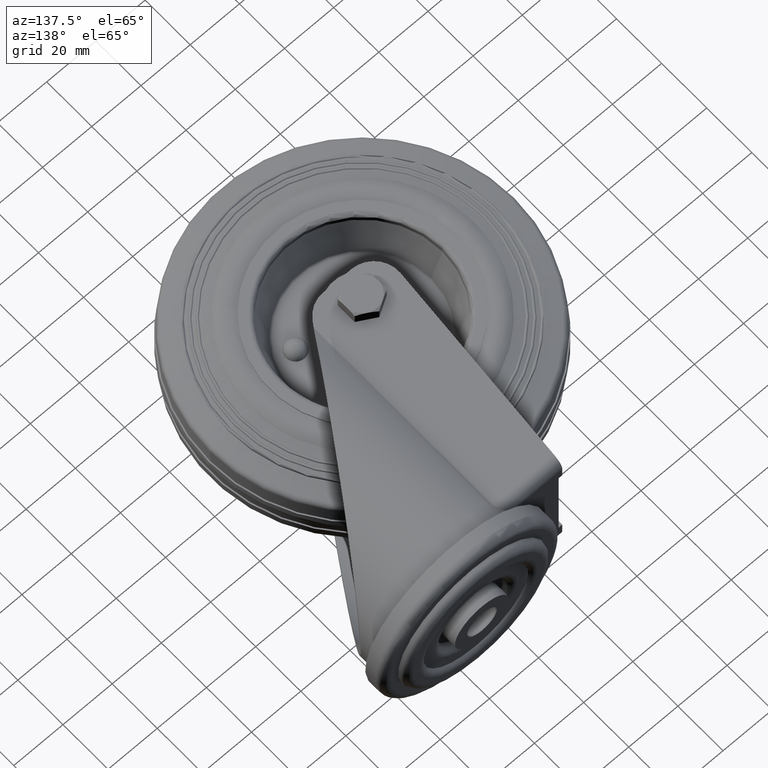
[diagram: clean part render]
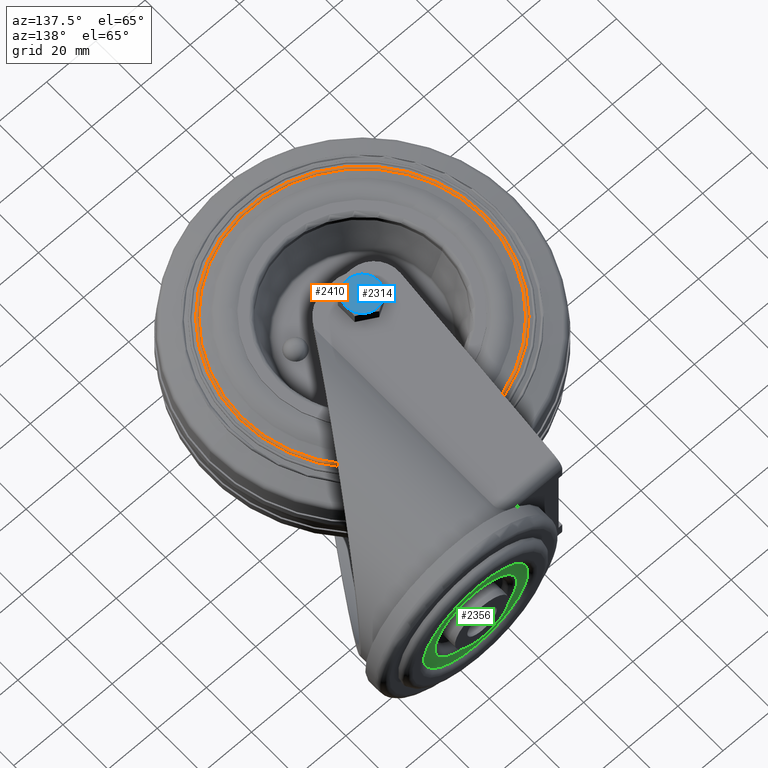
[diagram: same view with three faces highlighted in distinct colors, each labeled with its STEP entity id]
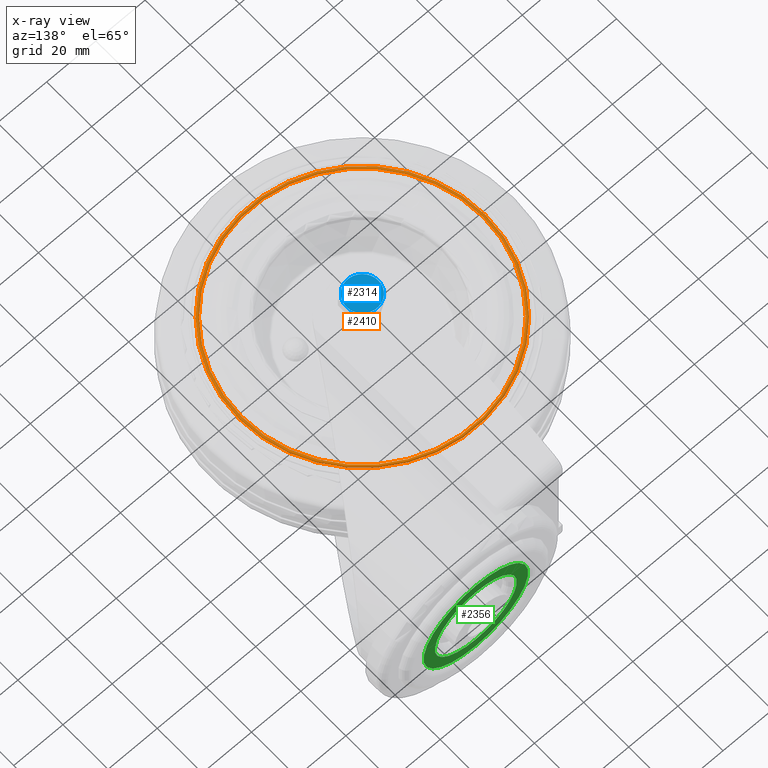
[diagram: x-ray of the same camera — body ghosted, the three highlighted faces saturated]
A machine part, auxiliary view with three faces highlighted in distinct colors.
The next image is the same camera in x-ray (body ghosted, the three faces saturated) — at least one of them is partly hidden behind the body in this view.
Their STEP definitions:

[orange] entity #2410 — the highlighted toroidal blend (fillet) surface has major radius 49.4615 mm and minor (blend) radius 0.5 mm.
#46=TOROIDAL_SURFACE('',#2857,49.4615108371233,0.500000000000003);
#403=CIRCLE('',#2855,48.9887515493236);
#404=CIRCLE('',#2856,48.9887515493236);
#405=CIRCLE('',#2858,0.500000000000003);
#406=CIRCLE('',#2859,49.9342701249229);
#407=CIRCLE('',#2860,49.9342701249229);
#585=FACE_OUTER_BOUND('',#769,.T.);
#769=EDGE_LOOP('',(#2065,#2066,#2067,#2068,#2069,#2070));
#1193=VERTEX_POINT('',#4407);
#1194=VERTEX_POINT('',#4408);
#1195=VERTEX_POINT('',#4413);
#1196=VERTEX_POINT('',#4415);
#1492=EDGE_CURVE('',#1193,#1194,#403,.T.);
#1493=EDGE_CURVE('',#1194,#1193,#404,.T.);
#1495=EDGE_CURVE('',#1194,#1195,#405,.T.);
#1496=EDGE_CURVE('',#1195,#1196,#406,.T.);
#1497=EDGE_CURVE('',#1196,#1195,#407,.T.);
#2065=ORIENTED_EDGE('',*,*,#1492,.F.);
#2066=ORIENTED_EDGE('',*,*,#1493,.F.);
#2067=ORIENTED_EDGE('',*,*,#1495,.T.);
#2068=ORIENTED_EDGE('',*,*,#1496,.T.);
#2069=ORIENTED_EDGE('',*,*,#1497,.T.);
#2070=ORIENTED_EDGE('',*,*,#1495,.F.);
#2410=ADVANCED_FACE('',(#585),#46,.T.);
#2855=AXIS2_PLACEMENT_3D('',#4409,#3524,#3525);
#2856=AXIS2_PLACEMENT_3D('',#4410,#3526,#3527);
#2857=AXIS2_PLACEMENT_3D('',#4412,#3529,#3530);
#2858=AXIS2_PLACEMENT_3D('',#4414,#3531,#3532);
#2859=AXIS2_PLACEMENT_3D('',#4416,#3533,#3534);
#2860=AXIS2_PLACEMENT_3D('',#4417,#3535,#3536);
#3524=DIRECTION('center_axis',(1.,0.,0.));
#3525=DIRECTION('ref_axis',(0.,0.,-1.));
#3526=DIRECTION('center_axis',(1.,0.,0.));
#3527=DIRECTION('ref_axis',(0.,0.,-1.));
#3529=DIRECTION('center_axis',(1.,0.,0.));
#3530=DIRECTION('ref_axis',(0.,0.,-1.));
#3531=DIRECTION('center_axis',(0.,-1.,-1.22464679914735E-16));
#3532=DIRECTION('ref_axis',(0.,-1.22464679914735E-16,1.));
#3533=DIRECTION('center_axis',(1.,0.,0.));
#3534=DIRECTION('ref_axis',(0.,0.,-1.));
#3535=DIRECTION('center_axis',(1.,0.,0.));
#3536=DIRECTION('ref_axis',(0.,0.,-1.));
#4407=CARTESIAN_POINT('',(36.9022959315851,0.,-48.9887515493236));
#4408=CARTESIAN_POINT('',(36.9022959315851,-5.99939177791041E-15,48.9887515493236));
#4409=CARTESIAN_POINT('Origin',(36.9022959315851,0.,0.));
#4410=CARTESIAN_POINT('Origin',(36.9022959315851,0.,0.));
#4412=CARTESIAN_POINT('Origin',(36.7395118543565,0.,0.));
#4413=CARTESIAN_POINT('',(36.5767277771279,-6.11518440762461E-15,49.9342701249229));
#4414=CARTESIAN_POINT('Origin',(36.7395118543565,-6.05728809276752E-15,
49.4615108371233));
#4415=CARTESIAN_POINT('',(36.5767277771279,0.,-49.9342701249229));
#4416=CARTESIAN_POINT('Origin',(36.5767277771279,0.,0.));
#4417=CARTESIAN_POINT('Origin',(36.5767277771279,0.,0.));

[blue] entity #2314 — the highlighted planar face has unit normal (0, 0, -1).
#305=CIRCLE('',#2645,6.5);
#306=CIRCLE('',#2647,6.5);
#307=CIRCLE('',#2649,6.5);
#308=CIRCLE('',#2651,6.5);
#309=CIRCLE('',#2653,6.5);
#310=CIRCLE('',#2655,6.5);
#489=FACE_OUTER_BOUND('',#646,.T.);
#646=EDGE_LOOP('',(#1648,#1649,#1650,#1651,#1652,#1653));
#1051=VERTEX_POINT('',#3811);
#1054=VERTEX_POINT('',#3823);
#1056=VERTEX_POINT('',#3833);
#1058=VERTEX_POINT('',#3843);
#1060=VERTEX_POINT('',#3853);
#1061=VERTEX_POINT('',#3862);
#1282=EDGE_CURVE('',#1054,#1051,#305,.T.);
#1283=EDGE_CURVE('',#1051,#1061,#306,.T.);
#1284=EDGE_CURVE('',#1060,#1058,#307,.T.);
#1285=EDGE_CURVE('',#1058,#1056,#308,.T.);
#1286=EDGE_CURVE('',#1056,#1054,#309,.T.);
#1287=EDGE_CURVE('',#1061,#1060,#310,.T.);
#1648=ORIENTED_EDGE('',*,*,#1286,.F.);
#1649=ORIENTED_EDGE('',*,*,#1285,.F.);
#1650=ORIENTED_EDGE('',*,*,#1284,.F.);
#1651=ORIENTED_EDGE('',*,*,#1287,.F.);
#1652=ORIENTED_EDGE('',*,*,#1283,.F.);
#1653=ORIENTED_EDGE('',*,*,#1282,.F.);
#2248=PLANE('',#2654);
#2314=ADVANCED_FACE('',(#489),#2248,.F.);
#2645=AXIS2_PLACEMENT_3D('',#3870,#3028,#3029);
#2647=AXIS2_PLACEMENT_3D('',#3872,#3032,#3033);
#2649=AXIS2_PLACEMENT_3D('',#3874,#3036,#3037);
#2651=AXIS2_PLACEMENT_3D('',#3876,#3040,#3041);
#2653=AXIS2_PLACEMENT_3D('',#3878,#3044,#3045);
#2654=AXIS2_PLACEMENT_3D('',#3879,#3046,#3047);
#2655=AXIS2_PLACEMENT_3D('',#3880,#3048,#3049);
#3028=DIRECTION('center_axis',(1.,0.,0.));
#3029=DIRECTION('ref_axis',(0.,0.,-1.));
#3032=DIRECTION('center_axis',(1.,0.,0.));
#3033=DIRECTION('ref_axis',(0.,0.,-1.));
#3036=DIRECTION('center_axis',(1.,0.,0.));
#3037=DIRECTION('ref_axis',(0.,0.,-1.));
#3040=DIRECTION('center_axis',(1.,0.,0.));
#3041=DIRECTION('ref_axis',(0.,0.,-1.));
#3044=DIRECTION('center_axis',(1.,0.,0.));
#3045=DIRECTION('ref_axis',(0.,0.,-1.));
#3046=DIRECTION('center_axis',(1.,0.,0.));
#3047=DIRECTION('ref_axis',(0.,0.,-1.));
#3048=DIRECTION('center_axis',(1.,0.,0.));
#3049=DIRECTION('ref_axis',(0.,0.,-1.));
#3811=CARTESIAN_POINT('',(-5.3,0.,6.5));
#3823=CARTESIAN_POINT('',(-5.3,5.62916512459885,3.25));
#3833=CARTESIAN_POINT('',(-5.3,5.62916512459885,-3.25));
#3843=CARTESIAN_POINT('',(-5.3,0.,-6.5));
#3853=CARTESIAN_POINT('',(-5.3,-5.62916512459885,-3.25));
#3862=CARTESIAN_POINT('',(-5.3,-5.62916512459885,3.25));
#3870=CARTESIAN_POINT('Origin',(-5.3,0.,0.));
#3872=CARTESIAN_POINT('Origin',(-5.3,0.,0.));
#3874=CARTESIAN_POINT('Origin',(-5.3,0.,0.));
#3876=CARTESIAN_POINT('Origin',(-5.3,0.,0.));
#3878=CARTESIAN_POINT('Origin',(-5.3,0.,0.));
#3879=CARTESIAN_POINT('Origin',(-5.3,0.,0.));
#3880=CARTESIAN_POINT('Origin',(-5.3,0.,0.));

[green] entity #2356 — the highlighted planar face has unit normal (0, -1, 0).
#270=FACE_BOUND('',#696,.T.);
#349=CIRCLE('',#2741,21.29);
#351=CIRCLE('',#2744,16.65);
#531=FACE_OUTER_BOUND('',#695,.T.);
#695=EDGE_LOOP('',(#1837));
#696=EDGE_LOOP('',(#1838));
#1133=VERTEX_POINT('',#4169);
#1134=VERTEX_POINT('',#4173);
#1392=EDGE_CURVE('',#1133,#1133,#349,.T.);
#1394=EDGE_CURVE('',#1134,#1134,#351,.T.);
#1837=ORIENTED_EDGE('',*,*,#1392,.T.);
#1838=ORIENTED_EDGE('',*,*,#1394,.F.);
#2266=PLANE('',#2743);
#2356=ADVANCED_FACE('',(#531,#270),#2266,.F.);
#2741=AXIS2_PLACEMENT_3D('',#4170,#3256,#3257);
#2743=AXIS2_PLACEMENT_3D('',#4172,#3260,#3261);
#2744=AXIS2_PLACEMENT_3D('',#4174,#3262,#3263);
#3256=DIRECTION('center_axis',(0.,1.,0.));
#3257=DIRECTION('ref_axis',(0.,0.,1.));
#3260=DIRECTION('center_axis',(0.,-1.,0.));
#3261=DIRECTION('ref_axis',(0.,0.,-1.));
#3262=DIRECTION('center_axis',(0.,1.,0.));
#3263=DIRECTION('ref_axis',(0.,0.,1.));
#4169=CARTESIAN_POINT('',(37.,90.75,-21.29));
#4170=CARTESIAN_POINT('Origin',(37.,90.75,0.));
#4172=CARTESIAN_POINT('Origin',(15.71,90.75,0.));
#4173=CARTESIAN_POINT('',(37.,90.75,-16.65));
#4174=CARTESIAN_POINT('Origin',(37.,90.75,0.));